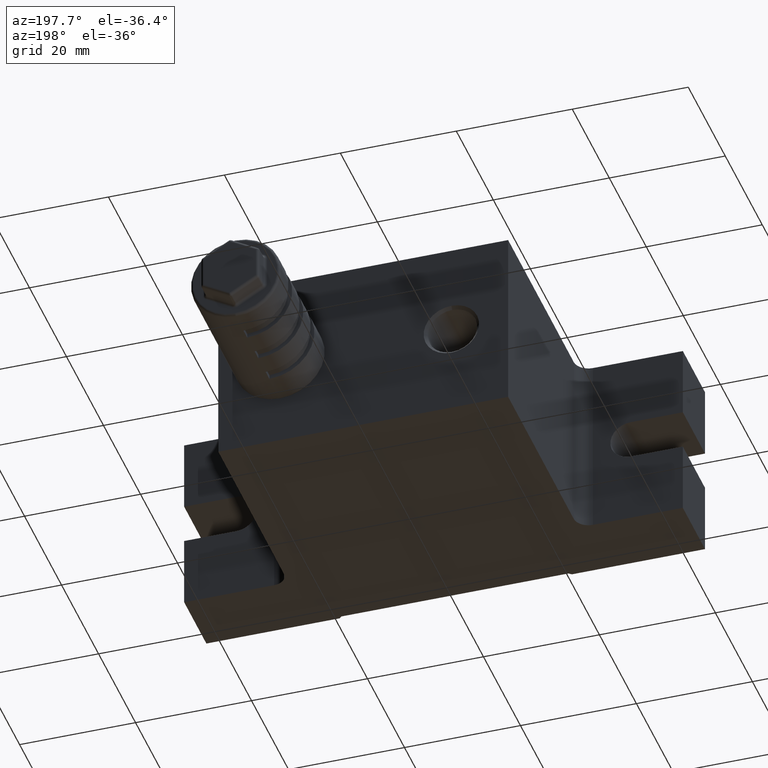
[diagram: clean part render]
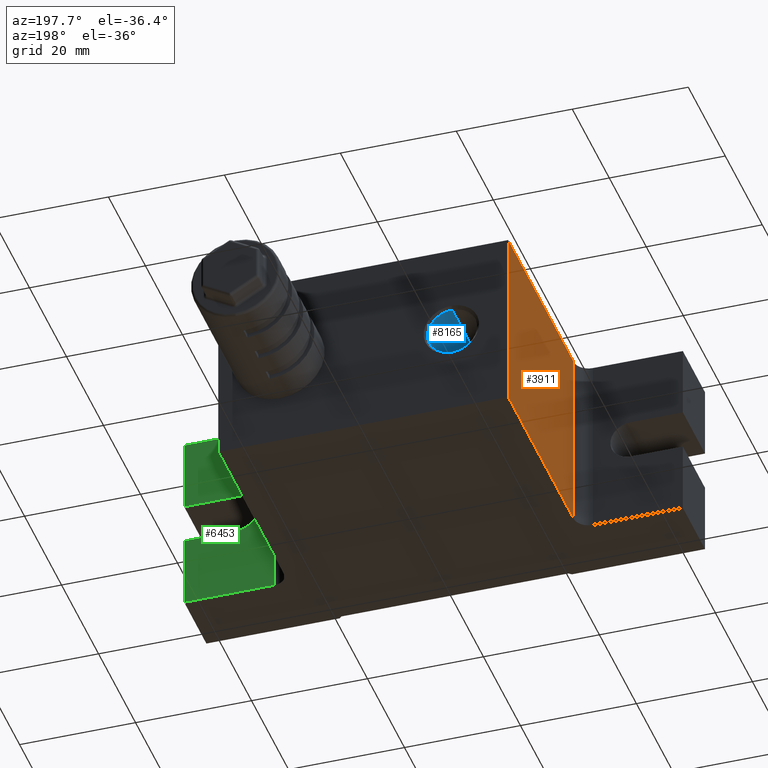
[diagram: same view with three faces highlighted in distinct colors, each labeled with its STEP entity id]
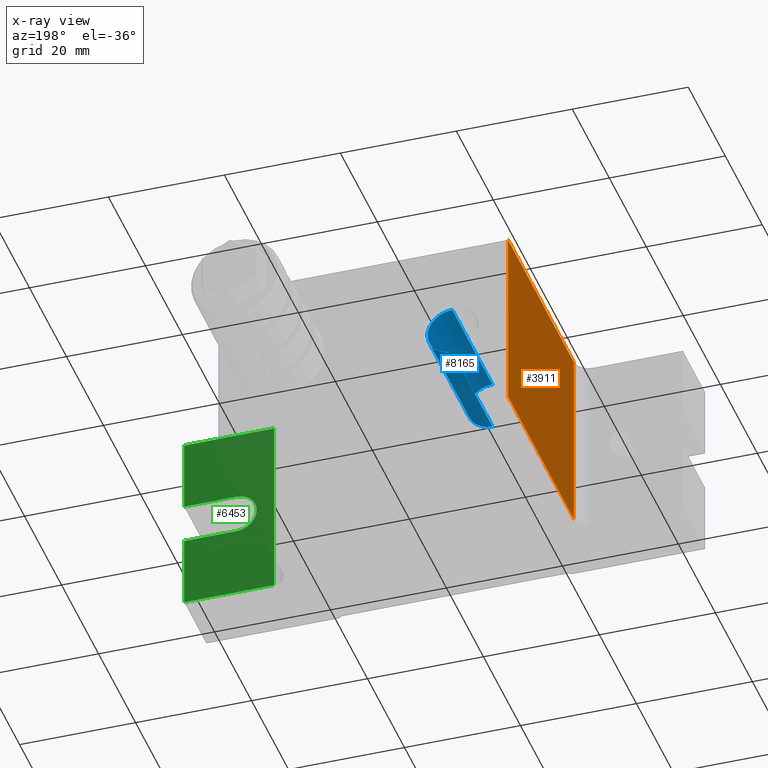
[diagram: x-ray of the same camera — body ghosted, the three highlighted faces saturated]
A machine part, auxiliary view with three faces highlighted in distinct colors.
The next image is the same camera in x-ray (body ghosted, the three faces saturated) — at least one of them is partly hidden behind the body in this view.
Their STEP definitions:

[orange] entity #3911 — the highlighted planar face has unit normal (1, 0, 0).
#193 = PLANE ( 'NONE',  #4924 ) ;
#971 = DIRECTION ( 'NONE',  ( 1.000000000000000000, 0.0000000000000000000, 0.0000000000000000000 ) ) ;
#1008 = LINE ( 'NONE', #6914, #3317 ) ;
#1754 = DIRECTION ( 'NONE',  ( -0.0000000000000000000, -0.0000000000000000000, 1.000000000000000000 ) ) ;
#1918 = LINE ( 'NONE', #6518, #7758 ) ;
#1972 = VERTEX_POINT ( 'NONE', #6020 ) ;
#2217 = EDGE_CURVE ( 'NONE', #1972, #6799, #1008, .T. ) ;
#2630 = EDGE_CURVE ( 'NONE', #3305, #6799, #1918, .T. ) ;
#2873 = CARTESIAN_POINT ( 'NONE',  ( -24.99999999999998600, -10.50000000000000200, 16.00000000000000000 ) ) ;
#2907 = DIRECTION ( 'NONE',  ( 0.0000000000000000000, 0.0000000000000000000, 1.000000000000000000 ) ) ;
#3265 = VECTOR ( 'NONE', #4894, 1000.000000000000000 ) ;
#3305 = VERTEX_POINT ( 'NONE', #8882 ) ;
#3317 = VECTOR ( 'NONE', #1754, 1000.000000000000000 ) ;
#3430 = EDGE_CURVE ( 'NONE', #8140, #3305, #9546, .T. ) ;
#3789 = ORIENTED_EDGE ( 'NONE', *, *, #2217, .F. ) ;
#3901 = ORIENTED_EDGE ( 'NONE', *, *, #4814, .F. ) ;
#3911 = ADVANCED_FACE ( 'NONE', ( #7527 ), #193, .F. ) ;
#4004 = CARTESIAN_POINT ( 'NONE',  ( -24.99999999999998600, 25.00000000000000000, -16.00000000000000000 ) ) ;
#4335 = VECTOR ( 'NONE', #2907, 1000.000000000000000 ) ;
#4814 = EDGE_CURVE ( 'NONE', #8140, #1972, #5486, .T. ) ;
#4894 = DIRECTION ( 'NONE',  ( -0.0000000000000000000, 1.000000000000000000, -0.0000000000000000000 ) ) ;
#4924 = AXIS2_PLACEMENT_3D ( 'NONE', #7632, #971, #6179 ) ;
#5486 = LINE ( 'NONE', #4004, #3265 ) ;
#6020 = CARTESIAN_POINT ( 'NONE',  ( -24.99999999999998600, 25.00000000000000000, -16.00000000000000000 ) ) ;
#6179 = DIRECTION ( 'NONE',  ( 0.0000000000000000000, 0.0000000000000000000, -1.000000000000000000 ) ) ;
#6518 = CARTESIAN_POINT ( 'NONE',  ( -24.99999999999998600, 25.00000000000000000, 16.00000000000000000 ) ) ;
#6711 = EDGE_LOOP ( 'NONE', ( #3901, #7896, #8653, #3789 ) ) ;
#6799 = VERTEX_POINT ( 'NONE', #8239 ) ;
#6914 = CARTESIAN_POINT ( 'NONE',  ( -24.99999999999998600, 25.00000000000000000, -16.00000000000000000 ) ) ;
#7283 = DIRECTION ( 'NONE',  ( -0.0000000000000000000, 1.000000000000000000, -0.0000000000000000000 ) ) ;
#7527 = FACE_OUTER_BOUND ( 'NONE', #6711, .T. ) ;
#7632 = CARTESIAN_POINT ( 'NONE',  ( -24.99999999999998600, 25.00000000000000000, -16.00000000000000000 ) ) ;
#7758 = VECTOR ( 'NONE', #7283, 1000.000000000000000 ) ;
#7896 = ORIENTED_EDGE ( 'NONE', *, *, #3430, .T. ) ;
#8140 = VERTEX_POINT ( 'NONE', #9466 ) ;
#8239 = CARTESIAN_POINT ( 'NONE',  ( -24.99999999999998600, 25.00000000000000000, 16.00000000000000000 ) ) ;
#8653 = ORIENTED_EDGE ( 'NONE', *, *, #2630, .T. ) ;
#8882 = CARTESIAN_POINT ( 'NONE',  ( -24.99999999999998600, -10.50000000000000200, 16.00000000000000000 ) ) ;
#9466 = CARTESIAN_POINT ( 'NONE',  ( -24.99999999999998600, -10.50000000000000200, -16.00000000000000000 ) ) ;
#9546 = LINE ( 'NONE', #2873, #4335 ) ;

[blue] entity #8165 — the highlighted cylindrical surface (edge-blend (fillet) strip) has radius 4.283 mm, axis along (-0, 1, -0).
#250 = CARTESIAN_POINT ( 'NONE',  ( -15.21000000000000100, 2.823000000000002600, -4.282999999999995000 ) ) ;
#313 = ORIENTED_EDGE ( 'NONE', *, *, #8989, .F. ) ;
#756 = CARTESIAN_POINT ( 'NONE',  ( -15.21000000000000100, 24.49999999999996400, 0.0000000000000000000 ) ) ;
#794 = DIRECTION ( 'NONE',  ( 0.0000000000000000000, 0.0000000000000000000, -1.000000000000000000 ) ) ;
#931 = AXIS2_PLACEMENT_3D ( 'NONE', #4892, #3338, #4918 ) ;
#1299 = DIRECTION ( 'NONE',  ( -0.0000000000000000000, 1.000000000000000000, -0.0000000000000000000 ) ) ;
#1630 = VECTOR ( 'NONE', #8271, 1000.000000000000000 ) ;
#2104 = CARTESIAN_POINT ( 'NONE',  ( -15.21000000000000100, 2.823000000000002600, 4.282999999999995000 ) ) ;
#2288 = EDGE_CURVE ( 'NONE', #5430, #2840, #3648, .T. ) ;
#2301 = EDGE_LOOP ( 'NONE', ( #7590, #313, #8975, #4503 ) ) ;
#2840 = VERTEX_POINT ( 'NONE', #4952 ) ;
#3328 = VERTEX_POINT ( 'NONE', #2104 ) ;
#3338 = DIRECTION ( 'NONE',  ( -0.0000000000000000000, 1.000000000000000000, -0.0000000000000000000 ) ) ;
#3648 = CIRCLE ( 'NONE', #3820, 4.282999999999992400 ) ;
#3715 = CARTESIAN_POINT ( 'NONE',  ( -15.21000000000000100, 2.823000000000002600, 0.0000000000000000000 ) ) ;
#3820 = AXIS2_PLACEMENT_3D ( 'NONE', #756, #5978, #794 ) ;
#4310 = VECTOR ( 'NONE', #1299, 1000.000000000000000 ) ;
#4503 = ORIENTED_EDGE ( 'NONE', *, *, #2288, .T. ) ;
#4892 = CARTESIAN_POINT ( 'NONE',  ( -15.21000000000000100, 25.00000000000000000, 0.0000000000000000000 ) ) ;
#4918 = DIRECTION ( 'NONE',  ( 0.0000000000000000000, 0.0000000000000000000, 1.000000000000000000 ) ) ;
#4952 = CARTESIAN_POINT ( 'NONE',  ( -15.21000000000000100, 24.49999999999996400, -4.282999999999992400 ) ) ;
#5430 = VERTEX_POINT ( 'NONE', #5845 ) ;
#5584 = CIRCLE ( 'NONE', #5804, 4.282999999999995000 ) ;
#5592 = VERTEX_POINT ( 'NONE', #250 ) ;
#5747 = CARTESIAN_POINT ( 'NONE',  ( -15.21000000000000100, 25.00000000000000000, -4.282999999999992400 ) ) ;
#5804 = AXIS2_PLACEMENT_3D ( 'NONE', #3715, #7476, #8213 ) ;
#5845 = CARTESIAN_POINT ( 'NONE',  ( -15.21000000000000100, 24.49999999999996400, 4.282999999999992400 ) ) ;
#5978 = DIRECTION ( 'NONE',  ( 0.0000000000000000000, 1.000000000000000000, 0.0000000000000000000 ) ) ;
#6305 = LINE ( 'NONE', #5747, #4310 ) ;
#7212 = EDGE_CURVE ( 'NONE', #5592, #2840, #6305, .T. ) ;
#7476 = DIRECTION ( 'NONE',  ( -0.0000000000000000000, 1.000000000000000000, -0.0000000000000000000 ) ) ;
#7590 = ORIENTED_EDGE ( 'NONE', *, *, #7212, .F. ) ;
#7690 = CYLINDRICAL_SURFACE ( 'NONE', #931, 4.282999999999992400 ) ;
#7816 = LINE ( 'NONE', #9009, #1630 ) ;
#8165 = ADVANCED_FACE ( 'NONE', ( #9350 ), #7690, .F. ) ;
#8213 = DIRECTION ( 'NONE',  ( 0.0000000000000000000, 0.0000000000000000000, 1.000000000000000000 ) ) ;
#8271 = DIRECTION ( 'NONE',  ( -0.0000000000000000000, 1.000000000000000000, -0.0000000000000000000 ) ) ;
#8975 = ORIENTED_EDGE ( 'NONE', *, *, #9531, .T. ) ;
#8989 = EDGE_CURVE ( 'NONE', #3328, #5592, #5584, .T. ) ;
#9009 = CARTESIAN_POINT ( 'NONE',  ( -15.21000000000000100, 25.00000000000000000, 4.282999999999992400 ) ) ;
#9350 = FACE_OUTER_BOUND ( 'NONE', #2301, .T. ) ;
#9531 = EDGE_CURVE ( 'NONE', #3328, #5430, #7816, .T. ) ;

[green] entity #6453 — the highlighted planar face has unit normal (0, -1, -0).
#115 = VERTEX_POINT ( 'NONE', #5868 ) ;
#162 = VECTOR ( 'NONE', #8375, 1000.000000000000000 ) ;
#230 = CARTESIAN_POINT ( 'NONE',  ( 43.00000000000000700, -13.00000000000000500, -16.00000000000000000 ) ) ;
#486 = VECTOR ( 'NONE', #5020, 1000.000000000000000 ) ;
#748 = DIRECTION ( 'NONE',  ( 1.000000000000000000, -0.0000000000000000000, -4.818676322157808100E-017 ) ) ;
#1177 = EDGE_CURVE ( 'NONE', #6017, #115, #8292, .T. ) ;
#1382 = ORIENTED_EDGE ( 'NONE', *, *, #7781, .F. ) ;
#1606 = CARTESIAN_POINT ( 'NONE',  ( 43.00000000000000700, -13.00000000000000500, -16.00000000000000000 ) ) ;
#1728 = EDGE_LOOP ( 'NONE', ( #8537, #1382, #3558, #9380, #3763, #9563, #2962, #2436 ) ) ;
#1752 = VECTOR ( 'NONE', #748, 1000.000000000000000 ) ;
#1851 = DIRECTION ( 'NONE',  ( -1.000000000000000000, 0.0000000000000000000, 5.300543954373588800E-016 ) ) ;
#1871 = VECTOR ( 'NONE', #5019, 1000.000000000000000 ) ;
#2009 = DIRECTION ( 'NONE',  ( 0.0000000000000000000, 1.000000000000000000, 0.0000000000000000000 ) ) ;
#2070 = LINE ( 'NONE', #4787, #3904 ) ;
#2281 = VERTEX_POINT ( 'NONE', #2329 ) ;
#2329 = CARTESIAN_POINT ( 'NONE',  ( 43.00000000000000700, -13.00000000000000500, -3.499999999999996000 ) ) ;
#2436 = ORIENTED_EDGE ( 'NONE', *, *, #9425, .T. ) ;
#2464 = LINE ( 'NONE', #8808, #486 ) ;
#2551 = LINE ( 'NONE', #6614, #1752 ) ;
#2728 = VERTEX_POINT ( 'NONE', #6450 ) ;
#2962 = ORIENTED_EDGE ( 'NONE', *, *, #5974, .T. ) ;
#3100 = CARTESIAN_POINT ( 'NONE',  ( 43.00000000000000700, -13.00000000000000500, -16.00000000000000000 ) ) ;
#3152 = CARTESIAN_POINT ( 'NONE',  ( 42.99999999999998600, -13.00000000000000500, 3.500000000000000000 ) ) ;
#3203 = EDGE_CURVE ( 'NONE', #6392, #2728, #2464, .T. ) ;
#3415 = CARTESIAN_POINT ( 'NONE',  ( 34.00000000000000000, -13.00000000000000500, -2.755364296100341300E-015 ) ) ;
#3501 = LINE ( 'NONE', #230, #162 ) ;
#3558 = ORIENTED_EDGE ( 'NONE', *, *, #1177, .F. ) ;
#3763 = ORIENTED_EDGE ( 'NONE', *, *, #7954, .F. ) ;
#3785 = DIRECTION ( 'NONE',  ( -0.0000000000000000000, -0.0000000000000000000, 1.000000000000000000 ) ) ;
#3859 = FACE_OUTER_BOUND ( 'NONE', #1728, .T. ) ;
#3874 = PLANE ( 'NONE',  #4144 ) ;
#3904 = VECTOR ( 'NONE', #1851, 1000.000000000000000 ) ;
#4144 = AXIS2_PLACEMENT_3D ( 'NONE', #1606, #4599, #6116 ) ;
#4189 = DIRECTION ( 'NONE',  ( 0.0000000000000000000, 0.0000000000000000000, 1.000000000000000000 ) ) ;
#4391 = VERTEX_POINT ( 'NONE', #6137 ) ;
#4455 = AXIS2_PLACEMENT_3D ( 'NONE', #3415, #2009, #4189 ) ;
#4599 = DIRECTION ( 'NONE',  ( 0.0000000000000000000, -1.000000000000000000, -0.0000000000000000000 ) ) ;
#4733 = VERTEX_POINT ( 'NONE', #3100 ) ;
#4787 = CARTESIAN_POINT ( 'NONE',  ( 42.99999999999998600, -13.00000000000000500, -3.500000000000000000 ) ) ;
#5019 = DIRECTION ( 'NONE',  ( 1.000000000000000000, -0.0000000000000000000, -0.0000000000000000000 ) ) ;
#5020 = DIRECTION ( 'NONE',  ( -0.0000000000000000000, -0.0000000000000000000, 1.000000000000000000 ) ) ;
#5081 = VERTEX_POINT ( 'NONE', #9633 ) ;
#5101 = LINE ( 'NONE', #6028, #5225 ) ;
#5225 = VECTOR ( 'NONE', #3785, 1000.000000000000000 ) ;
#5546 = LINE ( 'NONE', #7149, #9334 ) ;
#5571 = DIRECTION ( 'NONE',  ( 0.0000000000000000000, 0.0000000000000000000, 1.000000000000000000 ) ) ;
#5726 = EDGE_CURVE ( 'NONE', #2281, #6017, #2070, .T. ) ;
#5825 = LINE ( 'NONE', #8836, #1871 ) ;
#5868 = CARTESIAN_POINT ( 'NONE',  ( 34.00000000000000000, -13.00000000000000500, 3.499999999999995100 ) ) ;
#5974 = EDGE_CURVE ( 'NONE', #5081, #4391, #5546, .T. ) ;
#6017 = VERTEX_POINT ( 'NONE', #7876 ) ;
#6028 = CARTESIAN_POINT ( 'NONE',  ( 43.00000000000000700, -13.00000000000000500, -16.00000000000000000 ) ) ;
#6116 = DIRECTION ( 'NONE',  ( 0.0000000000000000000, 0.0000000000000000000, -1.000000000000000000 ) ) ;
#6137 = CARTESIAN_POINT ( 'NONE',  ( 27.50000000000001400, -13.00000000000000500, 16.00000000000000000 ) ) ;
#6392 = VERTEX_POINT ( 'NONE', #3152 ) ;
#6450 = CARTESIAN_POINT ( 'NONE',  ( 43.00000000000000700, -13.00000000000000500, 16.00000000000000000 ) ) ;
#6453 = ADVANCED_FACE ( 'NONE', ( #3859 ), #3874, .F. ) ;
#6614 = CARTESIAN_POINT ( 'NONE',  ( 42.99999999999998600, -13.00000000000000500, 3.500000000000000000 ) ) ;
#7005 = EDGE_CURVE ( 'NONE', #5081, #4733, #3501, .T. ) ;
#7149 = CARTESIAN_POINT ( 'NONE',  ( 27.50000000000001400, -13.00000000000000500, 16.00000000000000000 ) ) ;
#7781 = EDGE_CURVE ( 'NONE', #115, #6392, #2551, .T. ) ;
#7876 = CARTESIAN_POINT ( 'NONE',  ( 34.00000000000000000, -13.00000000000000500, -3.499999999999995100 ) ) ;
#7954 = EDGE_CURVE ( 'NONE', #4733, #2281, #5101, .T. ) ;
#8292 = CIRCLE ( 'NONE', #4455, 3.499999999999997800 ) ;
#8375 = DIRECTION ( 'NONE',  ( 1.000000000000000000, -0.0000000000000000000, -0.0000000000000000000 ) ) ;
#8537 = ORIENTED_EDGE ( 'NONE', *, *, #3203, .F. ) ;
#8808 = CARTESIAN_POINT ( 'NONE',  ( 43.00000000000000700, -13.00000000000000500, -16.00000000000000000 ) ) ;
#8836 = CARTESIAN_POINT ( 'NONE',  ( 43.00000000000000700, -13.00000000000000500, 16.00000000000000000 ) ) ;
#9334 = VECTOR ( 'NONE', #5571, 1000.000000000000000 ) ;
#9380 = ORIENTED_EDGE ( 'NONE', *, *, #5726, .F. ) ;
#9425 = EDGE_CURVE ( 'NONE', #4391, #2728, #5825, .T. ) ;
#9563 = ORIENTED_EDGE ( 'NONE', *, *, #7005, .F. ) ;
#9633 = CARTESIAN_POINT ( 'NONE',  ( 27.50000000000001400, -13.00000000000000500, -16.00000000000000000 ) ) ;